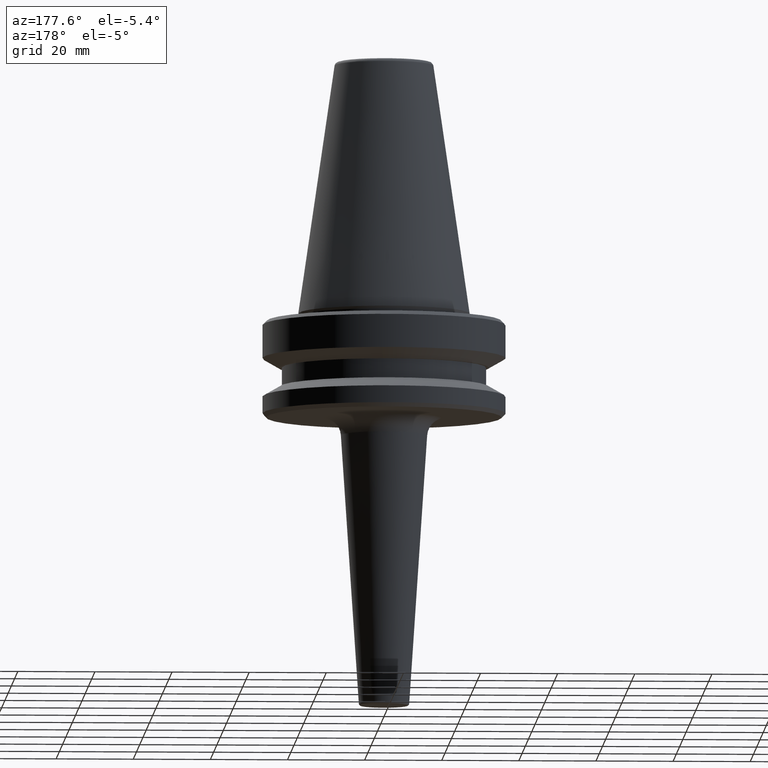
[diagram: clean part render]
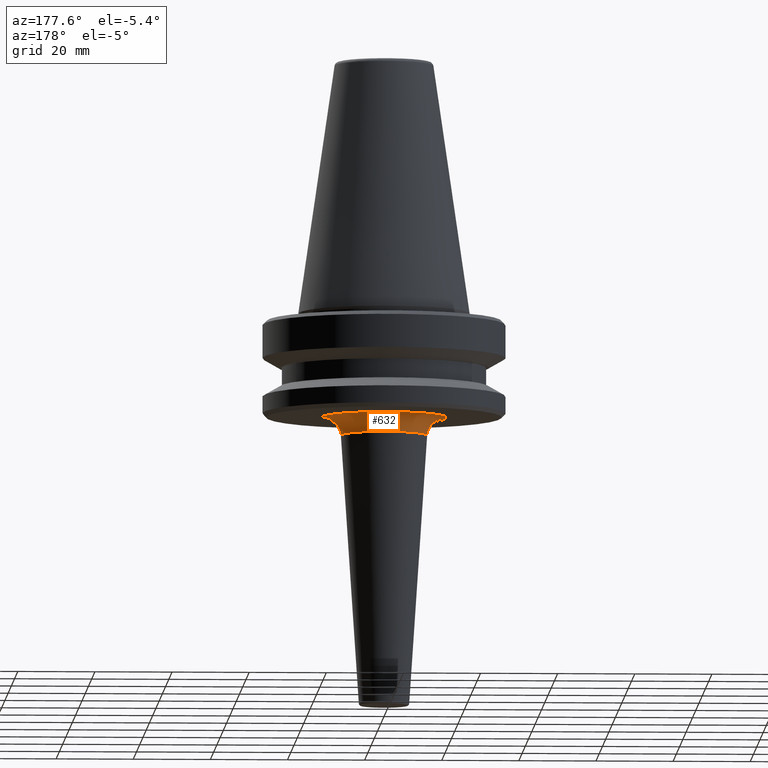
[diagram: same view with one face highlighted and labeled with its STEP entity id]
A machine part, auxiliary view. The second image highlights one B-rep face of the part: STEP entity #632.
In plain terms, the highlighted toroidal blend (fillet) surface has major radius 16.1778 mm and minor (blend) radius 5 mm.
Its self-contained STEP definition (entity closure, byte-faithful):
#31 = CARTESIAN_POINT ( 'NONE',  ( -11.18883967017459600, 1.675721268776682900E-015, -97.06740494738922100 ) ) ;
#34 = CIRCLE ( 'NONE', #644, 11.18883967017459600 ) ;
#56 = FACE_OUTER_BOUND ( 'NONE', #296, .T. ) ;
#65 = VERTEX_POINT ( 'NONE', #624 ) ;
#69 = DIRECTION ( 'NONE',  ( -0.0000000000000000000, -0.0000000000000000000, 1.000000000000000000 ) ) ;
#90 = CARTESIAN_POINT ( 'NONE',  ( 0.0000000000000000000, 0.0000000000000000000, -97.40000000000809200 ) ) ;
#103 = AXIS2_PLACEMENT_3D ( 'NONE', #90, #202, #599 ) ;
#157 = DIRECTION ( 'NONE',  ( 1.000000000000000000, 0.0000000000000000000, 0.0000000000000000000 ) ) ;
#165 = EDGE_CURVE ( 'NONE', #728, #65, #795, .T. ) ;
#202 = DIRECTION ( 'NONE',  ( -0.0000000000000000000, -0.0000000000000000000, 1.000000000000000000 ) ) ;
#247 = CARTESIAN_POINT ( 'NONE',  ( -16.17776545945764300, 1.981204868728141100E-015, -97.40000000000809200 ) ) ;
#296 = EDGE_LOOP ( 'NONE', ( #452, #592, #316, #649 ) ) ;
#316 = ORIENTED_EDGE ( 'NONE', *, *, #935, .T. ) ;
#382 = AXIS2_PLACEMENT_3D ( 'NONE', #455, #804, #569 ) ;
#402 = CARTESIAN_POINT ( 'NONE',  ( 16.17776545945764300, 0.0000000000000000000, -92.40000000000809200 ) ) ;
#452 = ORIENTED_EDGE ( 'NONE', *, *, #996, .F. ) ;
#455 = CARTESIAN_POINT ( 'NONE',  ( 0.0000000000000000000, 0.0000000000000000000, -92.40000000000807700 ) ) ;
#484 = CARTESIAN_POINT ( 'NONE',  ( 11.18883967017459600, 0.0000000000000000000, -97.06740494738922100 ) ) ;
#504 = CIRCLE ( 'NONE', #570, 5.000000000000004400 ) ;
#506 = DIRECTION ( 'NONE',  ( 0.0000000000000000000, 0.0000000000000000000, -1.000000000000000000 ) ) ;
#549 = CIRCLE ( 'NONE', #681, 5.000000000000011500 ) ;
#569 = DIRECTION ( 'NONE',  ( 1.000000000000000000, 0.0000000000000000000, 0.0000000000000000000 ) ) ;
#570 = AXIS2_PLACEMENT_3D ( 'NONE', #984, #594, #506 ) ;
#592 = ORIENTED_EDGE ( 'NONE', *, *, #165, .F. ) ;
#594 = DIRECTION ( 'NONE',  ( 0.0000000000000000000, -1.000000000000000000, 0.0000000000000000000 ) ) ;
#599 = DIRECTION ( 'NONE',  ( 1.000000000000000000, 0.0000000000000000000, 0.0000000000000000000 ) ) ;
#624 = CARTESIAN_POINT ( 'NONE',  ( -16.17776545945764300, 1.981204868728141100E-015, -92.40000000000809200 ) ) ;
#632 = ADVANCED_FACE ( 'NONE', ( #56 ), #939, .F. ) ;
#644 = AXIS2_PLACEMENT_3D ( 'NONE', #715, #69, #157 ) ;
#649 = ORIENTED_EDGE ( 'NONE', *, *, #775, .T. ) ;
#681 = AXIS2_PLACEMENT_3D ( 'NONE', #247, #951, #865 ) ;
#715 = CARTESIAN_POINT ( 'NONE',  ( 0.0000000000000000000, 0.0000000000000000000, -97.06740494738922100 ) ) ;
#728 = VERTEX_POINT ( 'NONE', #402 ) ;
#775 = EDGE_CURVE ( 'NONE', #799, #963, #34, .T. ) ;
#795 = CIRCLE ( 'NONE', #382, 16.17776545945764300 ) ;
#799 = VERTEX_POINT ( 'NONE', #484 ) ;
#804 = DIRECTION ( 'NONE',  ( -0.0000000000000000000, -0.0000000000000000000, 1.000000000000000000 ) ) ;
#865 = DIRECTION ( 'NONE',  ( -1.000000000000000000, 1.224646799147353000E-016, 0.0000000000000000000 ) ) ;
#935 = EDGE_CURVE ( 'NONE', #728, #799, #504, .T. ) ;
#939 = TOROIDAL_SURFACE ( 'NONE', #103, 16.17776545945764300, 5.000000000000010700 ) ;
#951 = DIRECTION ( 'NONE',  ( 1.224646799147353200E-016, 1.000000000000000000, 0.0000000000000000000 ) ) ;
#963 = VERTEX_POINT ( 'NONE', #31 ) ;
#984 = CARTESIAN_POINT ( 'NONE',  ( 16.17776545945764300, 0.0000000000000000000, -97.40000000000809200 ) ) ;
#996 = EDGE_CURVE ( 'NONE', #65, #963, #549, .T. ) ;